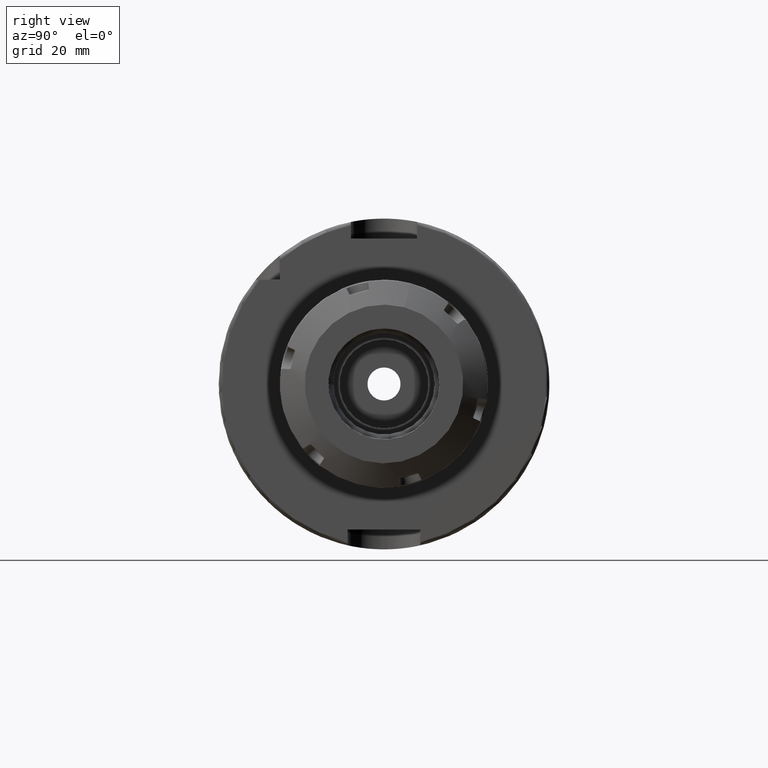
[diagram: clean part render]
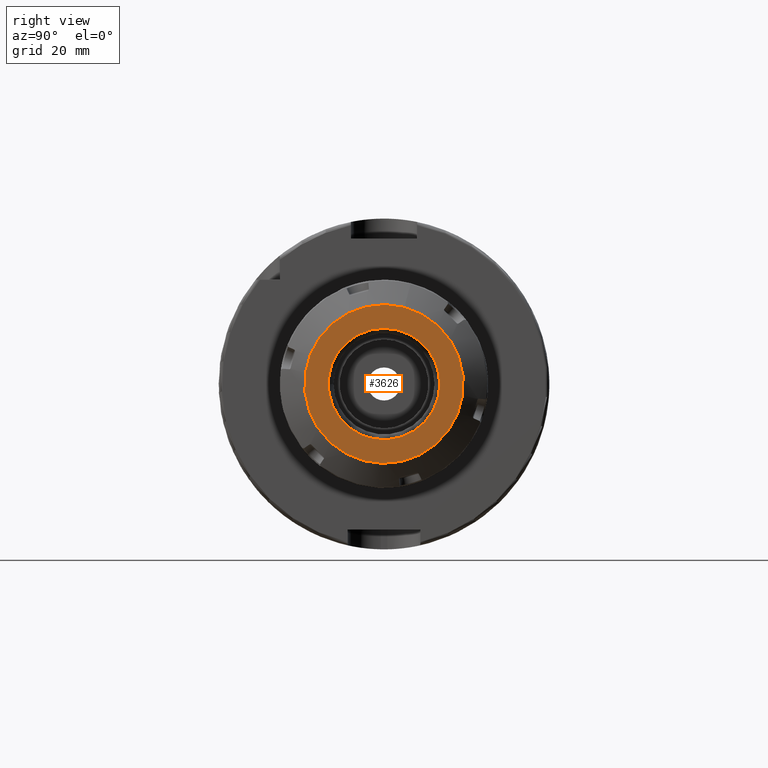
[diagram: same view with one face highlighted and labeled with its STEP entity id]
A machine part, right view. The second image highlights one B-rep face of the part: STEP entity #3626.
In plain terms, the highlighted planar face has unit normal (1, 0, 0).
Its self-contained STEP definition (entity closure, byte-faithful):
#256=FACE_BOUND('',#714,.T.);
#319=PLANE('',#4085);
#498=FACE_OUTER_BOUND('',#713,.T.);
#713=EDGE_LOOP('',(#3246));
#714=EDGE_LOOP('',(#3247,#3248));
#1313=CIRCLE('',#4036,24.);
#1326=CIRCLE('',#4086,16.85);
#1327=CIRCLE('',#4087,16.85);
#1674=VERTEX_POINT('',#7368);
#1697=VERTEX_POINT('',#8100);
#1698=VERTEX_POINT('',#8101);
#2160=EDGE_CURVE('',#1674,#1674,#1313,.T.);
#2226=EDGE_CURVE('',#1697,#1698,#1326,.T.);
#2227=EDGE_CURVE('',#1698,#1697,#1327,.T.);
#3246=ORIENTED_EDGE('',*,*,#2160,.T.);
#3247=ORIENTED_EDGE('',*,*,#2226,.T.);
#3248=ORIENTED_EDGE('',*,*,#2227,.T.);
#3626=ADVANCED_FACE('',(#498,#256),#319,.T.);
#4036=AXIS2_PLACEMENT_3D('',#7370,#4902,#4903);
#4085=AXIS2_PLACEMENT_3D('',#8099,#5038,#5039);
#4086=AXIS2_PLACEMENT_3D('',#8102,#5040,#5041);
#4087=AXIS2_PLACEMENT_3D('',#8103,#5042,#5043);
#4902=DIRECTION('center_axis',(1.,0.,0.));
#4903=DIRECTION('ref_axis',(0.,0.,1.));
#5038=DIRECTION('center_axis',(1.,0.,0.));
#5039=DIRECTION('ref_axis',(0.,0.,-1.));
#5040=DIRECTION('center_axis',(-1.,0.,0.));
#5041=DIRECTION('ref_axis',(0.,-1.,0.));
#5042=DIRECTION('center_axis',(-1.,0.,0.));
#5043=DIRECTION('ref_axis',(0.,-1.,0.));
#7368=CARTESIAN_POINT('',(12.75,0.,24.));
#7370=CARTESIAN_POINT('Origin',(12.75,1.234443973541E-14,0.));
#8099=CARTESIAN_POINT('Origin',(12.75,0.,0.));
#8100=CARTESIAN_POINT('',(12.75,16.85,0.));
#8101=CARTESIAN_POINT('',(12.75,-2.06352985656329E-15,16.85));
#8102=CARTESIAN_POINT('Origin',(12.75,0.,0.));
#8103=CARTESIAN_POINT('Origin',(12.75,0.,0.));